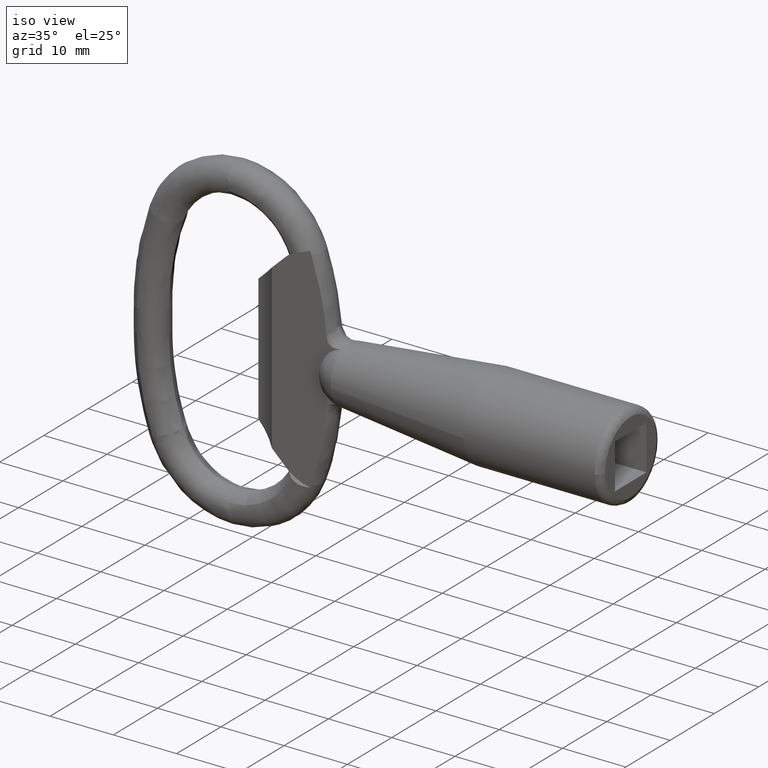
[diagram: clean part render]
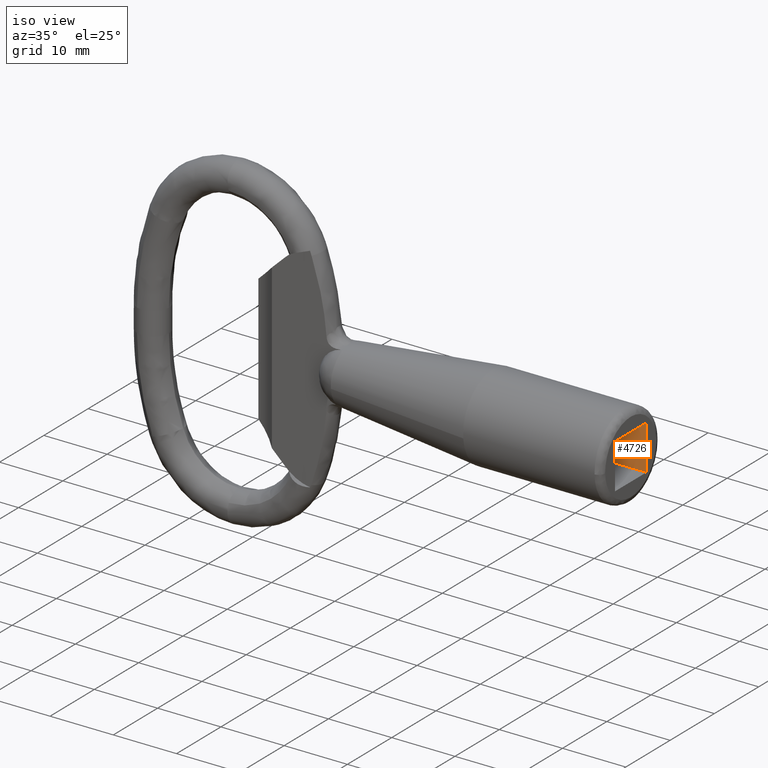
[diagram: same view with one face highlighted and labeled with its STEP entity id]
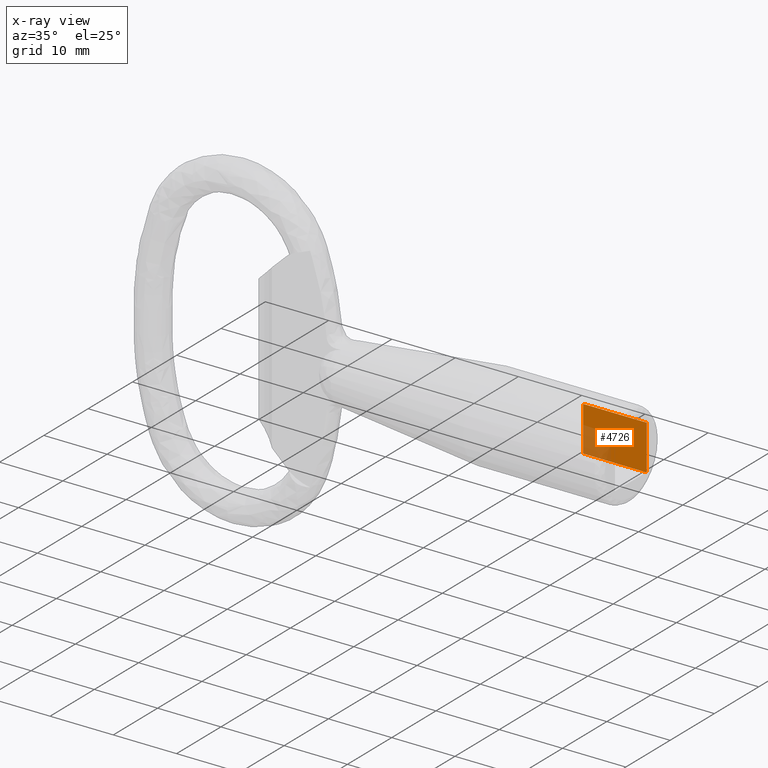
[diagram: x-ray of the same camera — body ghosted, the highlighted face saturated]
A machine part, iso view. The second image highlights one B-rep face of the part: STEP entity #4726.
The next image is the same camera in x-ray: the body ghosted, the highlighted face saturated — about 24% of this face is hidden behind the body in this view.
In plain terms, the highlighted face is a freeform B-spline surface patch.
Its self-contained STEP definition (entity closure, byte-faithful):
#4622=CARTESIAN_POINT('',(-0.221411142038219,3.550000168615540,-3.550000168615895));
#4623=VERTEX_POINT('',#4622);
#4629=CARTESIAN_POINT('',(-10.221411142038219,3.550000168615540,-3.550000168615895));
#4630=VERTEX_POINT('',#4629);
#4631=CARTESIAN_POINT('',(-10.221411142038219,3.550000168615540,-3.550000168615895));
#4632=CARTESIAN_POINT('',(-0.221411142038219,3.550000168615540,-3.550000168615895));
#4633=QUASI_UNIFORM_CURVE('',1,(#4631,#4632),.UNSPECIFIED.,.F.,.U.);
#4634=EDGE_CURVE('',#4630,#4623,#4633,.T.);
#4684=CARTESIAN_POINT('',(-0.221411142038219,3.550000168615540,3.550000168616010));
#4685=VERTEX_POINT('',#4684);
#4692=CARTESIAN_POINT('',(-10.221411142038219,3.550000168615540,3.550000168616010));
#4693=VERTEX_POINT('',#4692);
#4699=CARTESIAN_POINT('',(-10.221411142038219,3.550000168615540,3.550000168616010));
#4700=CARTESIAN_POINT('',(-0.221411142038219,3.550000168615540,3.550000168616010));
#4701=QUASI_UNIFORM_CURVE('',1,(#4699,#4700),.UNSPECIFIED.,.F.,.U.);
#4702=EDGE_CURVE('',#4693,#4685,#4701,.T.);
#4707=CARTESIAN_POINT('',(-10.720910747164901,3.550000168615540,-3.904645238349173));
#4708=CARTESIAN_POINT('',(-10.720910747164901,3.550000168615540,3.904645365307188));
#4709=CARTESIAN_POINT('',(0.278089088937231,3.550000168615540,-3.904645238349173));
#4710=CARTESIAN_POINT('',(0.278089088937231,3.550000168615540,3.904645365307188));
#4711=B_SPLINE_SURFACE_WITH_KNOTS('',1,1,((#4707,#4709),(#4708,#4710)),.UNSPECIFIED.,.F.,.F.,.U.,(2,2),(2,2),(0.0,7.809290603656361),(0.0,10.998999836102129),.UNSPECIFIED.);
#4712=CARTESIAN_POINT('',(-0.221411142038219,3.550000168615540,-3.550000168615895));
#4713=CARTESIAN_POINT('',(-0.221411142038219,3.550000168615540,3.550000168616010));
#4714=QUASI_UNIFORM_CURVE('',1,(#4712,#4713),.UNSPECIFIED.,.F.,.U.);
#4715=EDGE_CURVE('',#4623,#4685,#4714,.T.);
#4716=ORIENTED_EDGE('',*,*,#4715,.T.);
#4717=ORIENTED_EDGE('',*,*,#4702,.F.);
#4718=CARTESIAN_POINT('',(-10.221411142038219,3.550000168615540,-3.550000168615895));
#4719=CARTESIAN_POINT('',(-10.221411142038219,3.550000168615540,3.550000168616010));
#4720=QUASI_UNIFORM_CURVE('',1,(#4718,#4719),.UNSPECIFIED.,.F.,.U.);
#4721=EDGE_CURVE('',#4630,#4693,#4720,.T.);
#4722=ORIENTED_EDGE('',*,*,#4721,.F.);
#4723=ORIENTED_EDGE('',*,*,#4634,.T.);
#4724=EDGE_LOOP('',(#4716,#4717,#4722,#4723));
#4725=FACE_OUTER_BOUND('',#4724,.T.);
#4726=ADVANCED_FACE('',(#4725),#4711,.F.);